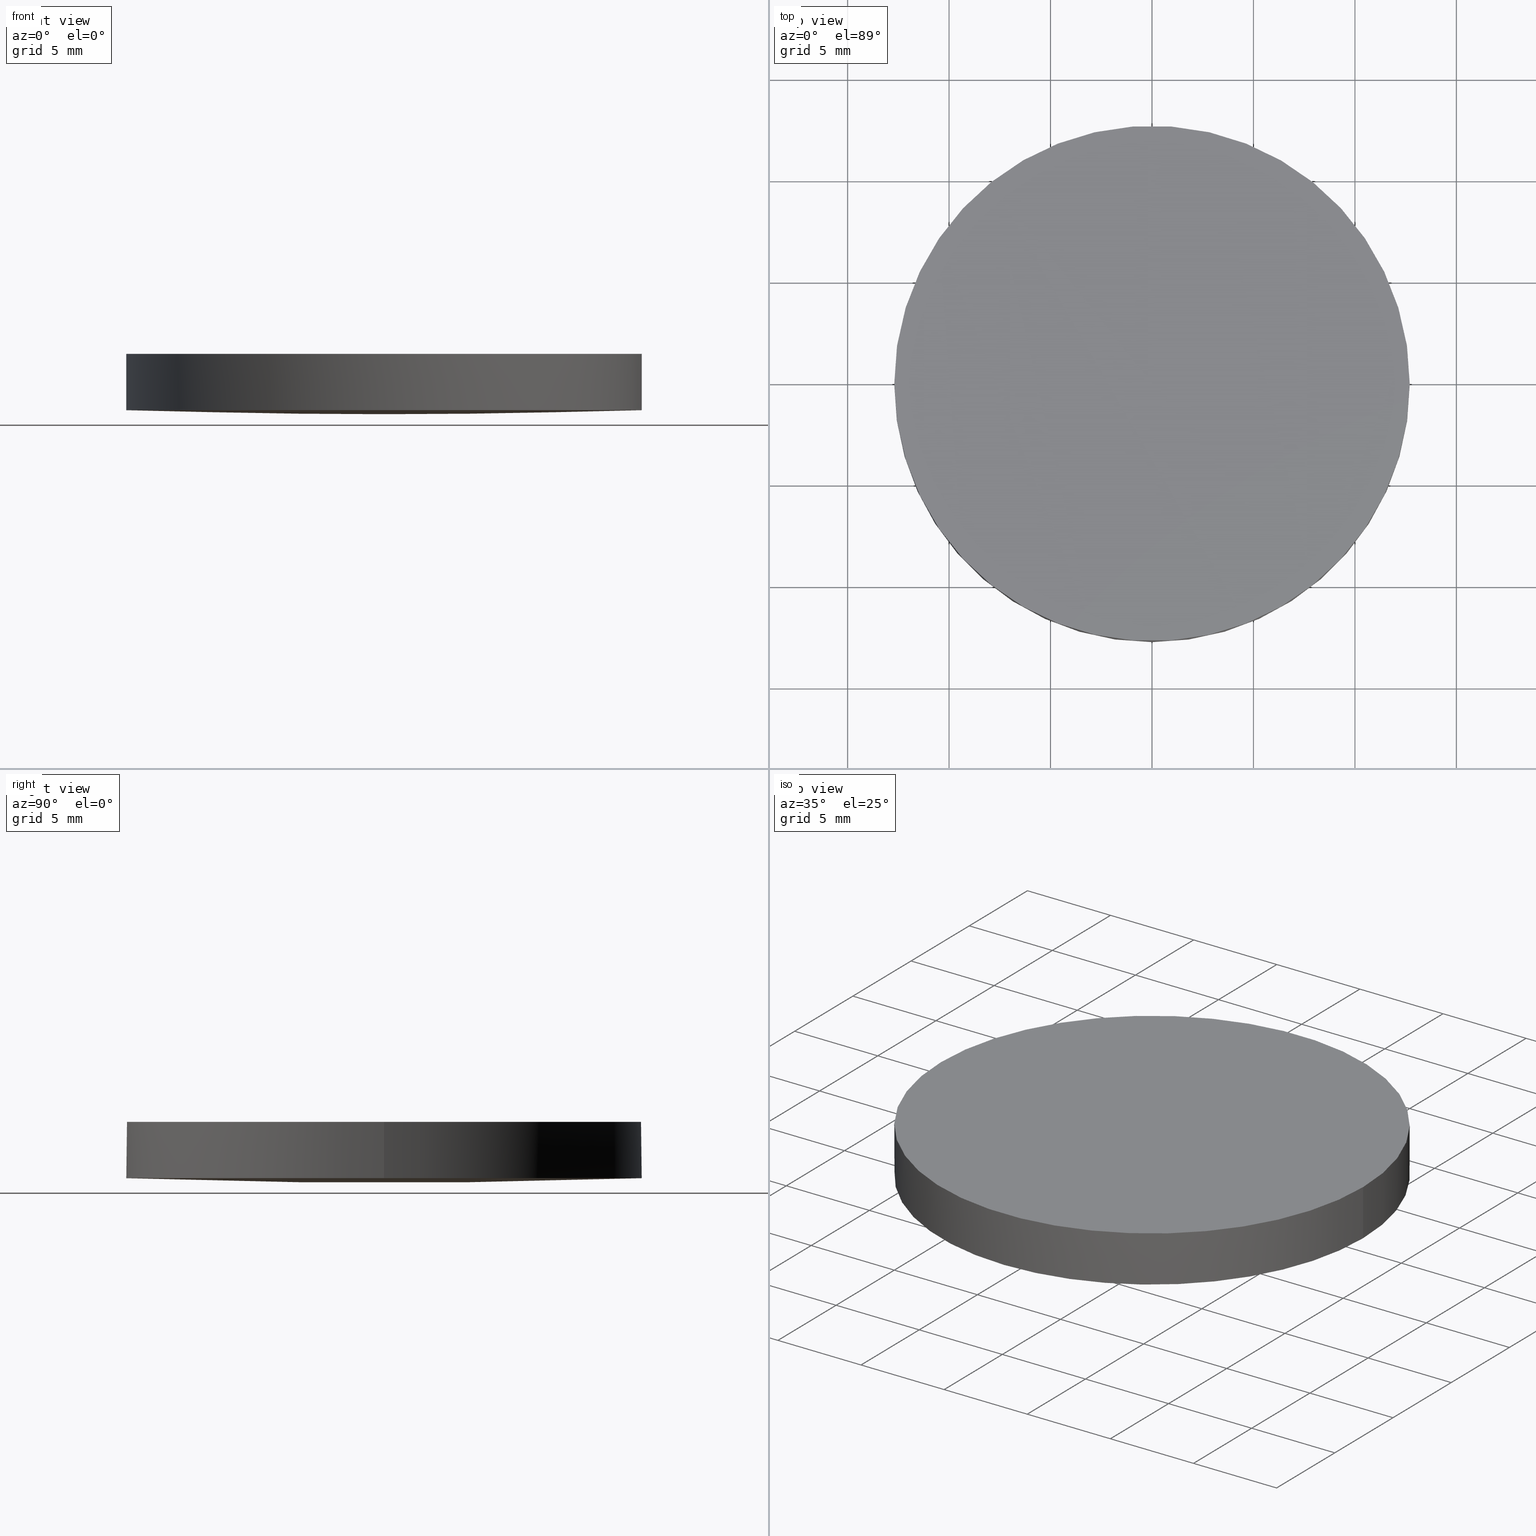
[diagram: canonical four-view strip — front | top / right | iso, engineering-drawing reading convention]
A machine part, canonical four-view strip (front | top / right | iso — engineering-drawing reading convention). The complete STEP part file that produces these views, byte-faithful:
ISO-10303-21;
HEADER;
FILE_DESCRIPTION (( 'STEP AP203' ),
    '1' );
FILE_NAME ('110-0251E BK7 pl-cx 25.4 F700.STEP',
    '2018-12-21T06:47:27',
    ( '' ),
    ( '' ),
    'SwSTEP 2.0',
    'SolidWorks 2017',
    '' );
FILE_SCHEMA (( 'CONFIG_CONTROL_DESIGN' ));
ENDSEC;

DATA;
#1 = CARTESIAN_POINT ( 'NONE',  ( -1.457167719820518000E-013, 12.85233669921101600, 0.2275328143920671000 ) ) ;
#2 = CARTESIAN_POINT ( 'NONE',  ( -12.69999999999999900, 3.997792089092478900E-015, 3.000000000000000000 ) ) ;
#3 = DIRECTION ( 'NONE',  ( 1.000000000000000000, 0.0000000000000000000, 0.0000000000000000000 ) ) ;
#4 = UNCERTAINTY_MEASURE_WITH_UNIT (LENGTH_MEASURE( 1.000000000000000100E-005 ), #185, 'distance_accuracy_value', 'NONE');
#5 = APPROVAL_DATE_TIME ( #46, #175 ) ;
#6 = APPROVAL_ROLE ( '' ) ;
#7 = AXIS2_PLACEMENT_3D ( 'NONE', #78, #18, #198 ) ;
#8 = APPROVAL_PERSON_ORGANIZATION ( #16, #175, #6 ) ;
#9 = EDGE_LOOP ( 'NONE', ( #145, #49, #199, #117, #93 ) ) ;
#10 = ADVANCED_FACE ( 'NONE', ( #192 ), #111, .T. ) ;
#11 = LOCAL_TIME ( 8, 47, 27.00000000000000000, #92 ) ;
#12 = VERTEX_POINT ( 'NONE', #74 ) ;
#13 = ORIENTED_EDGE ( 'NONE', *, *, #63, .F. ) ;
#14 = CARTESIAN_POINT ( 'NONE',  ( 12.76816257871494600, -12.85233669921100500, 0.4522349913988707400 ) ) ;
#15 = DIRECTION ( 'NONE',  ( 1.000000000000000000, 0.0000000000000000000, 0.0000000000000000000 ) ) ;
#16 = PERSON_AND_ORGANIZATION ( #56, #28 ) ;
#17 = DIRECTION ( 'NONE',  ( -0.0000000000000000000, -0.0000000000000000000, -1.000000000000000000 ) ) ;
#18 = DIRECTION ( 'NONE',  ( -0.0000000000000000000, -0.0000000000000000000, -1.000000000000000000 ) ) ;
#19 = CARTESIAN_POINT ( 'NONE',  ( -8.513646131337637300, 12.85233669921101400, 0.3024412716095096800 ) ) ;
#20 = ORIENTED_EDGE ( 'NONE', *, *, #217, .F. ) ;
#21 = PERSON_AND_ORGANIZATION_ROLE ( 'creator' ) ;
#22 = DIRECTION ( 'NONE',  ( 0.0000000000000000000, 0.0000000000000000000, 1.000000000000000000 ) ) ;
#23 = COORDINATED_UNIVERSAL_TIME_OFFSET ( 2, 0, .AHEAD. ) ;
#24 = PERSON_AND_ORGANIZATION_ROLE ( 'design_owner' ) ;
#25 = APPROVAL_STATUS ( 'not_yet_approved' ) ;
#26 = VECTOR ( 'NONE', #231, 1000.000000000000000 ) ;
#27 = AXIS2_PLACEMENT_3D ( 'NONE', #31, #228, #195 ) ;
#28 = ORGANIZATION ( 'UNSPECIFIED', 'UNSPECIFIED', '' ) ;
#29 = CYLINDRICAL_SURFACE ( 'NONE', #27, 12.69999999999999900 ) ;
#30 =( GEOMETRIC_REPRESENTATION_CONTEXT ( 3 ) GLOBAL_UNCERTAINTY_ASSIGNED_CONTEXT ( ( #4 ) ) GLOBAL_UNIT_ASSIGNED_CONTEXT ( ( #185, #202, #219 ) ) REPRESENTATION_CONTEXT ( 'NONE', 'WORKASPACE' ) );
#31 = CARTESIAN_POINT ( 'NONE',  ( 4.996003610813200500E-016, 2.442490654175340100E-015, 0.2221693186534720000 ) ) ;
#32 = CARTESIAN_POINT ( 'NONE',  ( 4.996003610813200500E-016, 2.442490654175340100E-015, 0.2221693186534720000 ) ) ;
#33 = CARTESIAN_POINT ( 'NONE',  ( -5.684341886080798300E-014, -4.285902710451988900, -0.07587596938533376600 ) ) ;
#34 = CARTESIAN_POINT ( 'NONE',  ( 4.260712147407668100, 4.285902710451999600, -0.07587596938533267000 ) ) ;
#35 = CALENDAR_DATE ( 2018, 21, 12 ) ;
#36 = CARTESIAN_POINT ( 'NONE',  ( -12.77883843050686400, -4.285902710451988900, 0.1490140879937450800 ) ) ;
#37 = PERSON_AND_ORGANIZATION ( #56, #28 ) ;
#38 = ORIENTED_EDGE ( 'NONE', *, *, #66, .T. ) ;
#39 = DIRECTION ( 'NONE',  ( 1.000000000000000000, 0.0000000000000000000, 0.0000000000000000000 ) ) ;
#40 = AXIS2_PLACEMENT_3D ( 'NONE', #221, #116, #80 ) ;
#41 = DATE_TIME_ROLE ( 'creation_date' ) ;
#42 = CC_DESIGN_PERSON_AND_ORGANIZATION_ASSIGNMENT ( #157, #21, ( #150 ) ) ;
#43 = MECHANICAL_CONTEXT ( 'NONE', #87, 'mechanical' ) ;
#44 = PERSON_AND_ORGANIZATION ( #56, #28 ) ;
#45 = VERTEX_POINT ( 'NONE', #75 ) ;
#46 = DATE_AND_TIME ( #215, #138 ) ;
#47 = ADVANCED_FACE ( 'NONE', ( #60 ), #29, .T. ) ;
#48 = CC_DESIGN_PERSON_AND_ORGANIZATION_ASSIGNMENT ( #37, #85, ( #150 ) ) ;
#49 = ORIENTED_EDGE ( 'NONE', *, *, #63, .T. ) ;
#50 = EDGE_CURVE ( 'NONE', #45, #159, #194, .T. ) ;
#51 = DIRECTION ( 'NONE',  ( 1.000000000000000000, 0.0000000000000000000, 0.0000000000000000000 ) ) ;
#52 = CARTESIAN_POINT ( 'NONE',  ( -12.69999999999999900, 3.997792089092478900E-015, 0.2221693186534720000 ) ) ;
#53 = AXIS2_PLACEMENT_3D ( 'NONE', #112, #17, #15 ) ;
#54 = CARTESIAN_POINT ( 'NONE',  ( 4.260712147407668100, -4.285902710451989800, -0.07587596938533375200 ) ) ;
#55 = CARTESIAN_POINT ( 'NONE',  ( 8.520764651621794500, 4.285902710451999600, -0.0009048789125339561900 ) ) ;
#56 = PERSON ( 'UNSPECIFIED', 'UNSPECIFIED', 'UNSPECIFIED', ('UNSPECIFIED'), ('UNSPECIFIED'), ('UNSPECIFIED') ) ;
#57 = DIRECTION ( 'NONE',  ( 1.000000000000000000, 0.0000000000000000000, 0.0000000000000000000 ) ) ;
#58 = PERSON_AND_ORGANIZATION ( #56, #28 ) ;
#59 = CARTESIAN_POINT ( 'NONE',  ( -8.520764651621789200, 4.285902710451999600, -0.0009048789125508155300 ) ) ;
#60 = FACE_OUTER_BOUND ( 'NONE', #129, .T. ) ;
#61 = DIRECTION ( 'NONE',  ( -0.0000000000000000000, -0.0000000000000000000, -1.000000000000000000 ) ) ;
#62 = CARTESIAN_POINT ( 'NONE',  ( -4.257152611722142800, -12.85233669921100500, 0.2275328143920681000 ) ) ;
#63 = EDGE_CURVE ( 'NONE', #68, #167, #107, .T. ) ;
#64 = PERSON_AND_ORGANIZATION ( #56, #28 ) ;
#65 = ORIENTED_EDGE ( 'NONE', *, *, #50, .T. ) ;
#66 = EDGE_CURVE ( 'NONE', #68, #159, #205, .T. ) ;
#67 = ADVANCED_FACE ( 'NONE', ( #227 ), #101, .T. ) ;
#68 = VERTEX_POINT ( 'NONE', #52 ) ;
#69 = ADVANCED_FACE ( 'NONE', ( #90 ), #91, .T. ) ;
#70 = PRODUCT_RELATED_PRODUCT_CATEGORY ( 'detail', '', ( #124 ) ) ;
#71 = AXIS2_PLACEMENT_3D ( 'NONE', #218, #61, #39 ) ;
#72 = CARTESIAN_POINT ( 'NONE',  ( -5.684341886080800200E-014, -12.85233669921100500, 0.2275328143920840600 ) ) ;
#73 = DIRECTION ( 'NONE',  ( 1.000000000000000000, 0.0000000000000000000, 0.0000000000000000000 ) ) ;
#74 = CARTESIAN_POINT ( 'NONE',  ( 12.69999999999999900, 2.442490654175340100E-015, 0.2221693186534720000 ) ) ;
#75 = CARTESIAN_POINT ( 'NONE',  ( -5.684341886080800200E-014, -12.70000000000014900, 0.2221693186534516300 ) ) ;
#76 = CALENDAR_DATE ( 2018, 21, 12 ) ;
#77 = ORIENTED_EDGE ( 'NONE', *, *, #50, .F. ) ;
#78 = CARTESIAN_POINT ( 'NONE',  ( 4.996003610813200500E-016, 2.442490654175340100E-015, 3.000000000000000000 ) ) ;
#79 = CARTESIAN_POINT ( 'NONE',  ( 12.69999999999999900, 2.442490654175340100E-015, 3.000000000000000000 ) ) ;
#80 = DIRECTION ( 'NONE',  ( 1.000000000000000000, 8.881784197001252300E-016, 0.0000000000000000000 ) ) ;
#81 = DIRECTION ( 'NONE',  ( 1.000000000000000000, 0.0000000000000000000, 0.0000000000000000000 ) ) ;
#82 = CIRCLE ( 'NONE', #40, 12.69999999999999900 ) ;
#83 = CARTESIAN_POINT ( 'NONE',  ( -4.260712147407767600, -4.285902710451989800, -0.07587596938534969800 ) ) ;
#84 = PERSON_AND_ORGANIZATION ( #56, #28 ) ;
#85 = PERSON_AND_ORGANIZATION_ROLE ( 'design_supplier' ) ;
#86 = AXIS2_PLACEMENT_3D ( 'NONE', #178, #213, #57 ) ;
#87 = APPLICATION_CONTEXT ( 'configuration controlled 3d designs of mechanical parts and assemblies' ) ;
#88 = CIRCLE ( 'NONE', #191, 12.69999999999999900 ) ;
#89 = CC_DESIGN_SECURITY_CLASSIFICATION ( #106, ( #150 ) ) ;
#90 = FACE_OUTER_BOUND ( 'NONE', #108, .T. ) ;
#91 =( BOUNDED_SURFACE ( )  B_SPLINE_SURFACE ( 3, 3, ( 
 ( #72, #140, #164, #14 ),
 ( #33, #54, #162, #179 ),
 ( #97, #34, #55, #180 ),
 ( #196, #98, #214, #203 ) ),
 .UNSPECIFIED., .F., .F., .F. ) 
 B_SPLINE_SURFACE_WITH_KNOTS ( ( 4, 4 ),
 ( 4, 4 ),
 ( 0.0000000000000000000, 1.000000000000000000 ),
 ( 0.0000000000000000000, 1.000000000000000000 ),
 .UNSPECIFIED. ) 
 GEOMETRIC_REPRESENTATION_ITEM ( )  RATIONAL_B_SPLINE_SURFACE ( (
 ( 1.000000000000000000, 0.9998967867075151400, 0.9998967867075151400, 1.000000000000000000),
 ( 0.9995822403114070800, 0.9994790701372751100, 0.9994790701372751100, 0.9995822403114070800),
 ( 0.9995822403114070800, 0.9994790701372751100, 0.9994790701372751100, 0.9995822403114070800),
 ( 1.000000000000000000, 0.9998967867075151400, 0.9998967867075151400, 1.000000000000000000) ) ) 
 REPRESENTATION_ITEM ( '' )  SURFACE ( )  );
#92 = COORDINATED_UNIVERSAL_TIME_OFFSET ( 2, 0, .AHEAD. ) ;
#93 = ORIENTED_EDGE ( 'NONE', *, *, #158, .F. ) ;
#94 = APPROVAL ( #25, 'UNSPECIFIED' ) ;
#95 = DIRECTION ( 'NONE',  ( 1.000000000000000000, 0.0000000000000000000, -0.0000000000000000000 ) ) ;
#96 = CC_DESIGN_PERSON_AND_ORGANIZATION_ASSIGNMENT ( #84, #103, ( #168 ) ) ;
#97 = CARTESIAN_POINT ( 'NONE',  ( -5.684341886080798300E-014, 4.285902710451999600, -0.07587596938533268400 ) ) ;
#98 = CARTESIAN_POINT ( 'NONE',  ( 4.257152611722043300, 12.85233669921101400, 0.2275328143920840300 ) ) ;
#99 = CC_DESIGN_PERSON_AND_ORGANIZATION_ASSIGNMENT ( #64, #24, ( #124 ) ) ;
#100 = CARTESIAN_POINT ( 'NONE',  ( -4.260712147407767600, 4.285902710451999600, -0.07587596938534861600 ) ) ;
#101 = CYLINDRICAL_SURFACE ( 'NONE', #121, 12.69999999999999900 ) ;
#102 = CARTESIAN_POINT ( 'NONE',  ( 4.996003610813200500E-016, 2.442490654175340100E-015, 0.2221693186534720000 ) ) ;
#103 = PERSON_AND_ORGANIZATION_ROLE ( 'creator' ) ;
#104 = APPROVAL_DATE_TIME ( #122, #163 ) ;
#105 = APPROVAL_STATUS ( 'not_yet_approved' ) ;
#106 = SECURITY_CLASSIFICATION ( '', '', #206 ) ;
#107 = LINE ( 'NONE', #212, #139 ) ;
#108 = EDGE_LOOP ( 'NONE', ( #208, #65, #207 ) ) ;
#109 = DIRECTION ( 'NONE',  ( 0.0000000000000000000, 0.0000000000000000000, 1.000000000000000000 ) ) ;
#110 = DIRECTION ( 'NONE',  ( 0.0000000000000000000, -1.000000000000000000, 0.0000000000000000000 ) ) ;
#111 = PLANE ( 'NONE',  #125 ) ;
#112 = CARTESIAN_POINT ( 'NONE',  ( 4.996003610813200500E-016, 2.442490654175340100E-015, 0.2221693186534720000 ) ) ;
#113 = COORDINATED_UNIVERSAL_TIME_OFFSET ( 2, 0, .AHEAD. ) ;
#114 = CLOSED_SHELL ( 'NONE', ( #69, #67, #120, #47, #10 ) ) ;
#115 = CC_DESIGN_APPROVAL ( #94, ( #106 ) ) ;
#116 = DIRECTION ( 'NONE',  ( -0.0000000000000000000, -0.0000000000000000000, -1.000000000000000000 ) ) ;
#117 = ORIENTED_EDGE ( 'NONE', *, *, #211, .F. ) ;
#118 = EDGE_CURVE ( 'NONE', #235, #167, #134, .T. ) ;
#119 = DATE_AND_TIME ( #154, #226 ) ;
#120 = ADVANCED_FACE ( 'NONE', ( #220 ), #181, .T. ) ;
#121 = AXIS2_PLACEMENT_3D ( 'NONE', #32, #161, #51 ) ;
#122 = DATE_AND_TIME ( #136, #222 ) ;
#123 = ORIENTED_EDGE ( 'NONE', *, *, #118, .F. ) ;
#124 = PRODUCT ( '110-0251E BK7 pl-cx 25.4 F700', '110-0251E BK7 pl-cx 25.4 F700', '', ( #43 ) ) ;
#125 = AXIS2_PLACEMENT_3D ( 'NONE', #229, #126, #95 ) ;
#126 = DIRECTION ( 'NONE',  ( 0.0000000000000000000, 0.0000000000000000000, 1.000000000000000000 ) ) ;
#127 = CARTESIAN_POINT ( 'NONE',  ( -12.76816257871483800, 12.85233669921101600, 0.4522349913988477100 ) ) ;
#128 = CARTESIAN_POINT ( 'NONE',  ( -4.257152611722142800, 12.85233669921101400, 0.2275328143920681000 ) ) ;
#129 = EDGE_LOOP ( 'NONE', ( #13, #174, #216, #210, #155 ) ) ;
#130 = APPROVAL_STATUS ( 'not_yet_approved' ) ;
#131 = APPROVAL_ROLE ( '' ) ;
#132 = LINE ( 'NONE', #187, #26 ) ;
#133 = EDGE_CURVE ( 'NONE', #12, #45, #173, .T. ) ;
#134 = CIRCLE ( 'NONE', #71, 12.69999999999999900 ) ;
#135 = CC_DESIGN_DATE_AND_TIME_ASSIGNMENT ( #119, #41, ( #168 ) ) ;
#136 = CALENDAR_DATE ( 2018, 21, 12 ) ;
#137 = ADVANCED_BREP_SHAPE_REPRESENTATION ( '110-0251E BK7 pl-cx 25.4 F700', ( #233, #156 ), #30 ) ;
#138 = LOCAL_TIME ( 8, 47, 27.00000000000000000, #113 ) ;
#139 = VECTOR ( 'NONE', #109, 1000.000000000000000 ) ;
#140 = CARTESIAN_POINT ( 'NONE',  ( 4.257152611722043300, -12.85233669921100500, 0.2275328143920840300 ) ) ;
#141 = EDGE_CURVE ( 'NONE', #45, #68, #88, .T. ) ;
#142 = CARTESIAN_POINT ( 'NONE',  ( -1.457167719820518000E-013, 4.285902710451999600, -0.07587596938534964300 ) ) ;
#143 = CARTESIAN_POINT ( 'NONE',  ( -12.76816257871483800, -12.85233669921100500, 0.4522349913988477100 ) ) ;
#144 = SHAPE_DEFINITION_REPRESENTATION ( #160, #137 ) ;
#145 = ORIENTED_EDGE ( 'NONE', *, *, #66, .F. ) ;
#146 = CARTESIAN_POINT ( 'NONE',  ( -1.457167719820518000E-013, -12.85233669921100500, 0.2275328143920671000 ) ) ;
#147 = DESIGN_CONTEXT ( 'detailed design', #223, 'design' ) ;
#148 = APPLICATION_PROTOCOL_DEFINITION ( 'international standard', 'config_control_design', 1994, #87 ) ;
#149 = LOCAL_TIME ( 8, 47, 27.00000000000000000, #224 ) ;
#150 = PRODUCT_DEFINITION_FORMATION_WITH_SPECIFIED_SOURCE ( 'ANY', '', #124, .NOT_KNOWN. ) ;
#151 = APPLICATION_PROTOCOL_DEFINITION ( 'international standard', 'config_control_design', 1994, #223 ) ;
#152 = APPROVAL_ROLE ( '' ) ;
#153 = DATE_TIME_ROLE ( 'classification_date' ) ;
#154 = CALENDAR_DATE ( 2018, 21, 12 ) ;
#155 = ORIENTED_EDGE ( 'NONE', *, *, #118, .T. ) ;
#156 = AXIS2_PLACEMENT_3D ( 'NONE', #232, #22, #3 ) ;
#157 = PERSON_AND_ORGANIZATION ( #56, #28 ) ;
#158 = EDGE_CURVE ( 'NONE', #159, #12, #82, .T. ) ;
#159 = VERTEX_POINT ( 'NONE', #234 ) ;
#160 = PRODUCT_DEFINITION_SHAPE ( 'NONE', 'NONE',  #168 ) ;
#161 = DIRECTION ( 'NONE',  ( 0.0000000000000000000, 0.0000000000000000000, 1.000000000000000000 ) ) ;
#162 = CARTESIAN_POINT ( 'NONE',  ( 8.520764651621796300, -4.285902710451989800, -0.0009048789125350677100 ) ) ;
#163 = APPROVAL ( #130, 'UNSPECIFIED' ) ;
#164 = CARTESIAN_POINT ( 'NONE',  ( 8.513646131337644400, -12.85233669921100500, 0.3024412716095264400 ) ) ;
#165 = CC_DESIGN_PERSON_AND_ORGANIZATION_ASSIGNMENT ( #44, #171, ( #106 ) ) ;
#166 = CARTESIAN_POINT ( 'NONE',  ( -8.513646131337637300, -12.85233669921100500, 0.3024412716095096800 ) ) ;
#167 = VERTEX_POINT ( 'NONE', #2 ) ;
#168 = PRODUCT_DEFINITION ( 'UNKNOWN', '', #150, #147 ) ;
#169 = DIRECTION ( 'NONE',  ( -0.0000000000000000000, -0.0000000000000000000, -1.000000000000000000 ) ) ;
#170 = CARTESIAN_POINT ( 'NONE',  ( -1.457167719820518000E-013, -4.285902710451988900, -0.07587596938535073900 ) ) ;
#171 = PERSON_AND_ORGANIZATION_ROLE ( 'classification_officer' ) ;
#172 = PERSON_AND_ORGANIZATION ( #56, #28 ) ;
#173 = CIRCLE ( 'NONE', #53, 12.69999999999999900 ) ;
#174 = ORIENTED_EDGE ( 'NONE', *, *, #141, .F. ) ;
#175 = APPROVAL ( #105, 'UNSPECIFIED' ) ;
#176 = APPROVAL_DATE_TIME ( #193, #94 ) ;
#177 = ORIENTED_EDGE ( 'NONE', *, *, #141, .T. ) ;
#178 = CARTESIAN_POINT ( 'NONE',  ( 4.996003610813200500E-016, 2.442490654175340100E-015, 0.2221693186534720000 ) ) ;
#179 = CARTESIAN_POINT ( 'NONE',  ( 12.77883843050697300, -4.285902710451988900, 0.1490140879937681400 ) ) ;
#180 = CARTESIAN_POINT ( 'NONE',  ( 12.77883843050697100, 4.285902710451999600, 0.1490140879937692200 ) ) ;
#181 =( BOUNDED_SURFACE ( )  B_SPLINE_SURFACE ( 3, 3, ( 
 ( #143, #166, #62, #146 ),
 ( #36, #200, #83, #170 ),
 ( #204, #59, #100, #142 ),
 ( #127, #19, #128, #1 ) ),
 .UNSPECIFIED., .F., .F., .F. ) 
 B_SPLINE_SURFACE_WITH_KNOTS ( ( 4, 4 ),
 ( 4, 4 ),
 ( 0.0000000000000000000, 1.000000000000000000 ),
 ( 0.0000000000000000000, 1.000000000000000000 ),
 .UNSPECIFIED. ) 
 GEOMETRIC_REPRESENTATION_ITEM ( )  RATIONAL_B_SPLINE_SURFACE ( (
 ( 1.000000000000000000, 0.9998967867075151400, 0.9998967867075151400, 1.000000000000000000),
 ( 0.9995822403114070800, 0.9994790701372751100, 0.9994790701372751100, 0.9995822403114070800),
 ( 0.9995822403114070800, 0.9994790701372751100, 0.9994790701372751100, 0.9995822403114070800),
 ( 1.000000000000000000, 0.9998967867075151400, 0.9998967867075151400, 1.000000000000000000) ) ) 
 REPRESENTATION_ITEM ( '' )  SURFACE ( )  );
#182 = EDGE_LOOP ( 'NONE', ( #123, #20 ) ) ;
#183 = AXIS2_PLACEMENT_3D ( 'NONE', #197, #73, #110 ) ;
#184 = DATE_AND_TIME ( #76, #11 ) ;
#185 =( LENGTH_UNIT ( ) NAMED_UNIT ( * ) SI_UNIT ( .MILLI., .METRE. ) );
#186 = CIRCLE ( 'NONE', #7, 12.69999999999999900 ) ;
#187 = CARTESIAN_POINT ( 'NONE',  ( 12.69999999999999900, 2.442490654175340100E-015, 0.2221693186534720000 ) ) ;
#188 = CC_DESIGN_DATE_AND_TIME_ASSIGNMENT ( #184, #153, ( #106 ) ) ;
#189 = CC_DESIGN_APPROVAL ( #163, ( #150 ) ) ;
#190 = APPROVAL_PERSON_ORGANIZATION ( #172, #163, #131 ) ;
#191 = AXIS2_PLACEMENT_3D ( 'NONE', #102, #169, #81 ) ;
#192 = FACE_OUTER_BOUND ( 'NONE', #182, .T. ) ;
#193 = DATE_AND_TIME ( #35, #149 ) ;
#194 = CIRCLE ( 'NONE', #183, 363.1000000000000200 ) ;
#195 = DIRECTION ( 'NONE',  ( 1.000000000000000000, 0.0000000000000000000, 0.0000000000000000000 ) ) ;
#196 = CARTESIAN_POINT ( 'NONE',  ( -5.684341886080800200E-014, 12.85233669921101600, 0.2275328143920840600 ) ) ;
#197 = CARTESIAN_POINT ( 'NONE',  ( -5.684341886080800200E-014, 2.842170943040400100E-014, 363.1000000000000200 ) ) ;
#198 = DIRECTION ( 'NONE',  ( 1.000000000000000000, 0.0000000000000000000, 0.0000000000000000000 ) ) ;
#199 = ORIENTED_EDGE ( 'NONE', *, *, #217, .T. ) ;
#200 = CARTESIAN_POINT ( 'NONE',  ( -8.520764651621789200, -4.285902710451989800, -0.0009048789125518998400 ) ) ;
#201 = CC_DESIGN_APPROVAL ( #175, ( #168 ) ) ;
#202 =( NAMED_UNIT ( * ) PLANE_ANGLE_UNIT ( ) SI_UNIT ( $, .RADIAN. ) );
#203 = CARTESIAN_POINT ( 'NONE',  ( 12.76816257871494600, 12.85233669921101600, 0.4522349913988707400 ) ) ;
#204 = CARTESIAN_POINT ( 'NONE',  ( -12.77883843050686400, 4.285902710451999600, 0.1490140879937461600 ) ) ;
#205 = CIRCLE ( 'NONE', #86, 12.69999999999999900 ) ;
#206 = SECURITY_CLASSIFICATION_LEVEL ( 'unclassified' ) ;
#207 = ORIENTED_EDGE ( 'NONE', *, *, #158, .T. ) ;
#208 = ORIENTED_EDGE ( 'NONE', *, *, #133, .T. ) ;
#209 = APPROVAL_PERSON_ORGANIZATION ( #58, #94, #152 ) ;
#210 = ORIENTED_EDGE ( 'NONE', *, *, #211, .T. ) ;
#211 = EDGE_CURVE ( 'NONE', #12, #235, #132, .T. ) ;
#212 = CARTESIAN_POINT ( 'NONE',  ( -12.69999999999999900, 3.997792089092478900E-015, 0.2221693186534720000 ) ) ;
#213 = DIRECTION ( 'NONE',  ( -0.0000000000000000000, -0.0000000000000000000, -1.000000000000000000 ) ) ;
#214 = CARTESIAN_POINT ( 'NONE',  ( 8.513646131337644400, 12.85233669921101400, 0.3024412716095264400 ) ) ;
#215 = CALENDAR_DATE ( 2018, 21, 12 ) ;
#216 = ORIENTED_EDGE ( 'NONE', *, *, #133, .F. ) ;
#217 = EDGE_CURVE ( 'NONE', #167, #235, #186, .T. ) ;
#218 = CARTESIAN_POINT ( 'NONE',  ( 4.996003610813200500E-016, 2.442490654175340100E-015, 3.000000000000000000 ) ) ;
#219 =( NAMED_UNIT ( * ) SI_UNIT ( $, .STERADIAN. ) SOLID_ANGLE_UNIT ( ) );
#220 = FACE_OUTER_BOUND ( 'NONE', #225, .T. ) ;
#221 = CARTESIAN_POINT ( 'NONE',  ( 4.996003610813200500E-016, 2.442490654175340100E-015, 0.2221693186534720000 ) ) ;
#222 = LOCAL_TIME ( 8, 47, 27.00000000000000000, #23 ) ;
#223 = APPLICATION_CONTEXT ( 'configuration controlled 3d designs of mechanical parts and assemblies' ) ;
#224 = COORDINATED_UNIVERSAL_TIME_OFFSET ( 2, 0, .AHEAD. ) ;
#225 = EDGE_LOOP ( 'NONE', ( #77, #177, #38 ) ) ;
#226 = LOCAL_TIME ( 8, 47, 27.00000000000000000, #230 ) ;
#227 = FACE_OUTER_BOUND ( 'NONE', #9, .T. ) ;
#228 = DIRECTION ( 'NONE',  ( 0.0000000000000000000, 0.0000000000000000000, 1.000000000000000000 ) ) ;
#229 = CARTESIAN_POINT ( 'NONE',  ( 0.0000000000000000000, 26.11199999999999800, 3.000000000000000000 ) ) ;
#230 = COORDINATED_UNIVERSAL_TIME_OFFSET ( 2, 0, .AHEAD. ) ;
#231 = DIRECTION ( 'NONE',  ( 0.0000000000000000000, 0.0000000000000000000, 1.000000000000000000 ) ) ;
#232 = CARTESIAN_POINT ( 'NONE',  ( 0.0000000000000000000, 0.0000000000000000000, 0.0000000000000000000 ) ) ;
#233 = MANIFOLD_SOLID_BREP ( 'Imported1', #114 ) ;
#234 = CARTESIAN_POINT ( 'NONE',  ( -5.684341886080800200E-014, 12.70000000000017900, 0.2221693186534516300 ) ) ;
#235 = VERTEX_POINT ( 'NONE', #79 ) ;
ENDSEC;
END-ISO-10303-21;
